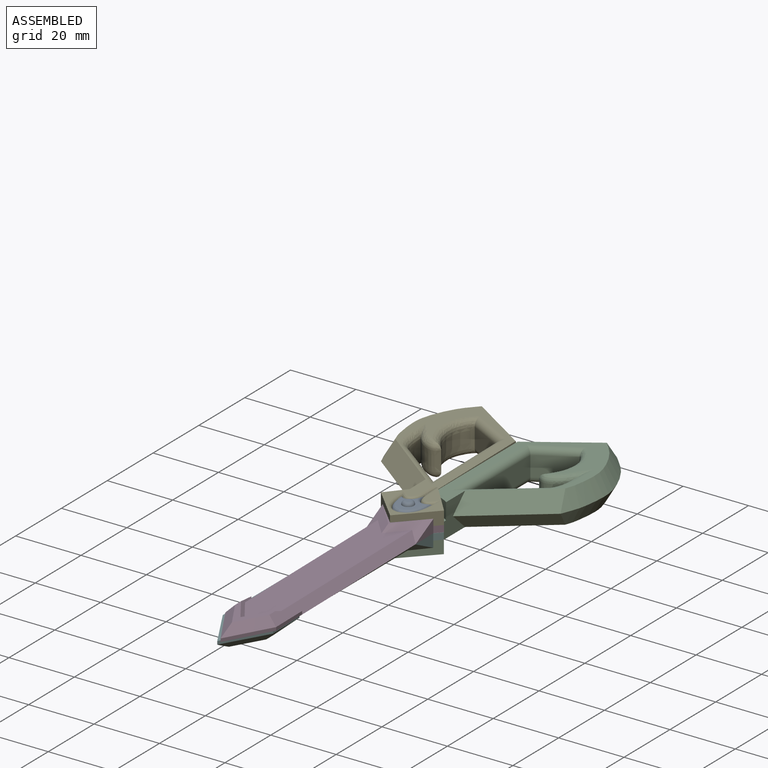
[diagram: assembled view]
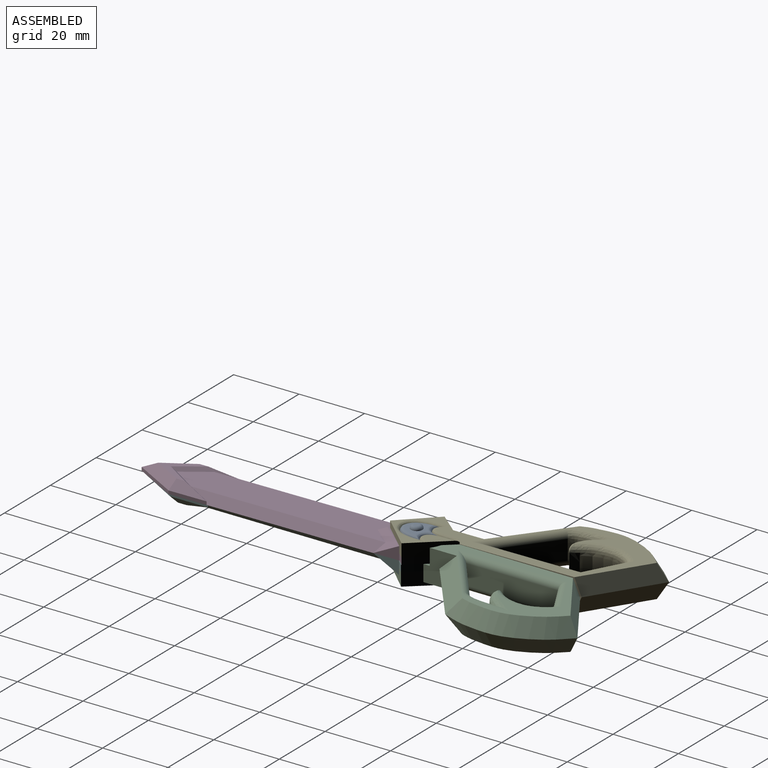
[diagram: assembled view, second angle]
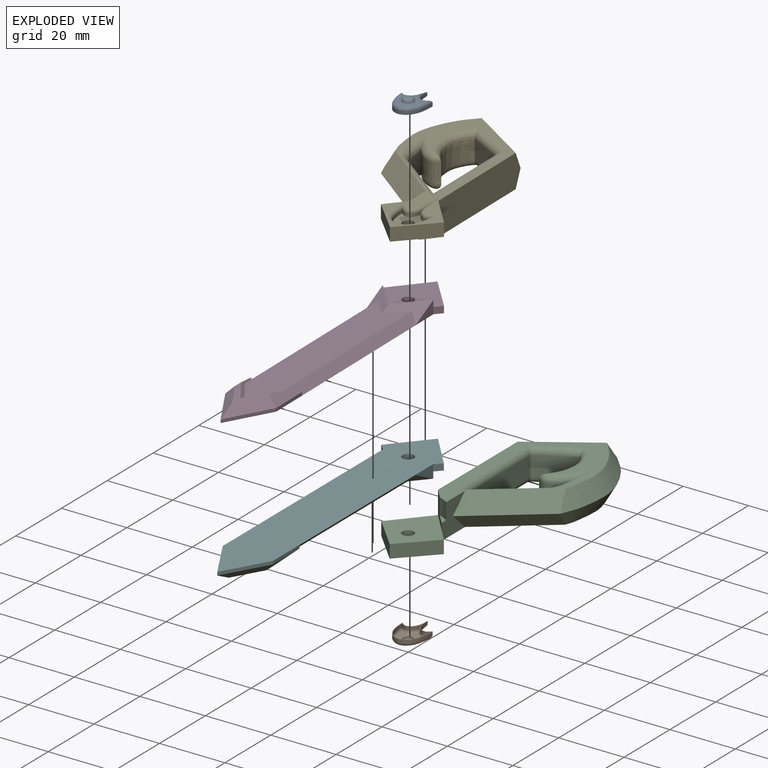
[diagram: exploded view]
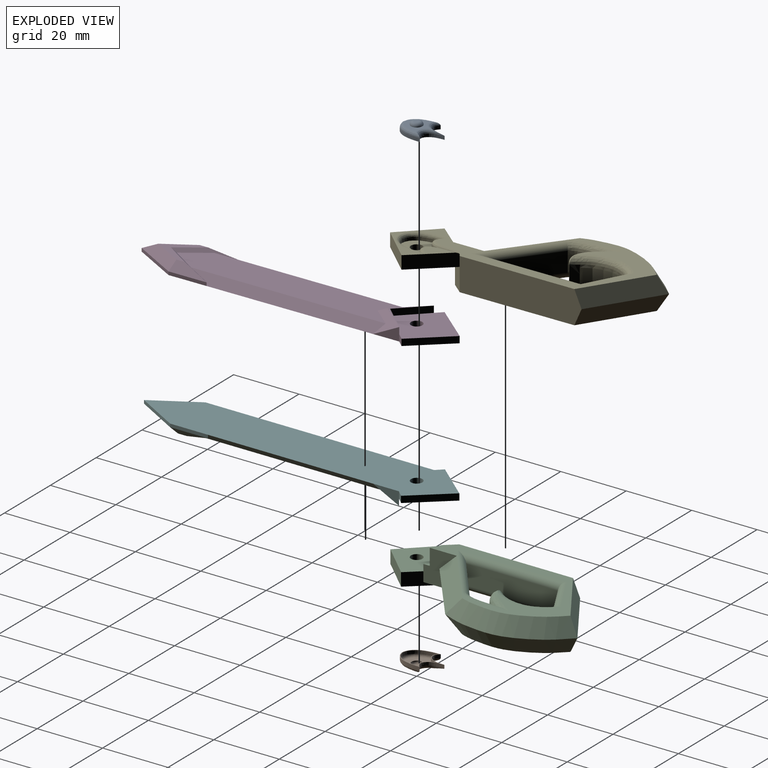
[diagram: exploded view, second angle]
ASSEMBLY  parts=6 mates=5
PART A: 47 faces, bbox 11.3x13.9x3.5 mm
  f0: plane 13.45x9.69mm, normal (0,0,-1), area 7.1mm2, adj f1,f2,f3,f4,f5,f6,f7,f8
  f1: extruded ~2.2x1mm, area 2.2mm2, adj f0,f2,f10,f19
  f2: extruded ~5.41x4.61mm, area 8.9mm2, adj f0,f1,f3,f17
  f3: extruded ~5.41x4.61mm, area 8.9mm2, adj f0,f2,f4,f15
  f4: extruded ~2.2x1mm, area 2.2mm2, adj f0,f3,f5,f14
  f5: extruded ~1.92x1mm, area 1.9mm2, adj f0,f4,f6,f16
  f6: extruded ~3x1.41mm, area 3.4mm2, adj f0,f5,f7,f18
  f7: extruded ~2.78x1.49mm, area 3.2mm2, adj f0,f6,f8,f20
  f8: extruded ~2.78x1.49mm, area 3.2mm2, adj f0,f7,f9,f22
  f9: extruded ~3x1.41mm, area 3.4mm2, adj f0,f8,f10,f23
  f10: extruded ~1.92x1mm, area 1.9mm2, adj f0,f1,f9,f21
  f11: plane 7.28x7.03mm, normal (0,0,1), area 23mm2, adj f13,f14,f15,f16,f17,f18,f19,f20
  f12: plane 1.5x1.5mm, normal (0,0,1), area 1.8mm2, adj f13
  f13: torus R=0.75mm, axis (0,0,1), area 13.7mm2, adj f11,f12
  f14: bspline ~5.75x1.41mm, area 2.2mm2, adj f4,f11,f15,f16
  f15: bspline ~6.79x6.43mm, area 9.9mm2, adj f3,f11,f14,f17
  f16: bspline ~2.76x1.4mm, area 3mm2, adj f5,f11,f14,f18
  f17: bspline ~6.79x6.43mm, area 9.9mm2, adj f2,f11,f15,f19
  f18: bspline ~4.54x2.82mm, area 5mm2, adj f6,f11,f16,f20
  f19: bspline ~3.02x1.16mm, area 2.2mm2, adj f1,f11,f17,f21
  f20: bspline ~4.13x3.08mm, area 4.5mm2, adj f7,f11,f18,f22
  f21: bspline ~5.05x1.95mm, area 3mm2, adj f10,f11,f19,f23
  f22: bspline ~4.13x3.08mm, area 4.5mm2, adj f8,f11,f20,f23
  f23: bspline ~4.54x2.82mm, area 5mm2, adj f9,f11,f21,f22
  f24: extruded ~1.71x1mm, area 1.7mm2, adj f0,f25,f33,f42
  f25: extruded ~4.39x3.2mm, area 6.4mm2, adj f0,f24,f26,f40
  f26: extruded ~4.39x3.2mm, area 6.4mm2, adj f0,f25,f27,f38
  f27: extruded ~1.71x1mm, area 1.7mm2, adj f0,f26,f28,f37
  f28: extruded ~1.9x1mm, area 1.9mm2, adj f0,f27,f29,f39
  f29: extruded ~2.92x1.37mm, area 3.3mm2, adj f0,f28,f30,f41
  f30: extruded ~2.63x1.41mm, area 3.1mm2, adj f0,f29,f31,f43
  f31: extruded ~2.63x1.41mm, area 3.1mm2, adj f0,f30,f32,f45
  f32: extruded ~2.92x1.37mm, area 3.3mm2, adj f0,f31,f33,f46
  f33: extruded ~1.9x1mm, area 1.9mm2, adj f0,f24,f32,f44
  f34: plane 7.28x7.03mm, normal (0,0,-1), area 25.4mm2, adj f36,f37,f38,f39,f40,f41,f42,f43
  f35: plane 1.5x1.5mm, normal (0,0,-1), area 1.8mm2, adj f36
  f36: torus R=0.75mm, axis (0,0,1), area 11.9mm2, adj f34,f35
  f37: bspline ~5.22x1.2mm, area 1.4mm2, adj f27,f34,f38,f39
  f38: bspline ~6.08x4.78mm, area 6.5mm2, adj f26,f34,f37,f40
  f39: bspline ~2.71x1.2mm, area 2.4mm2, adj f28,f34,f37,f41
  f40: bspline ~6.08x4.78mm, area 6.5mm2, adj f25,f34,f38,f42
  f41: bspline ~4.41x2.63mm, area 3.9mm2, adj f29,f34,f39,f43
  f42: bspline ~2.5x0.95mm, area 1.4mm2, adj f24,f34,f40,f44
  f43: bspline ~3.97x2.88mm, area 3.5mm2, adj f30,f34,f41,f45
  f44: bspline ~5.29x1.77mm, area 2.4mm2, adj f33,f34,f42,f46
  f45: bspline ~3.97x2.88mm, area 3.5mm2, adj f31,f34,f43,f46
  f46: bspline ~4.41x2.63mm, area 3.9mm2, adj f32,f34,f44,f45
PART B: same geometry as A
PART C: 61 faces, bbox 40.4x71.6x11.5 mm
  f0: plane 7.96x4.77mm, normal (0,0,1), area 19.3mm2, adj f15,f58
  f1: plane 7.96x4.77mm, normal (0,0,1), area 19.3mm2, adj f16,f56
  f2: plane 7x6.85mm, normal (0.76,-0.65,0), area 40.6mm2, adj f8,f9,f12,f13,f14,f50
  f3: extruded ~16.32x6mm, area 109mm2, adj f4,f10,f42,f48
  f4: plane 10.87x6.01mm, normal (-0.48,-0.88,0), area 74.5mm2, adj f3,f5,f40,f46
  f5: plane 28.11x6mm, normal (-1,0,0), area 168.6mm2, adj f4,f6,f38,f44
  f6: plane 16.58x12.8mm, normal (0.61,0.79,0), area 125.7mm2, adj f5,f7,f39,f45
  f7: extruded ~8.11x6mm, area 50.5mm2, adj f6,f10,f41,f47
  f8: plane 36.93x10mm, normal (1,0,0), area 358.4mm2, adj f2,f11,f12,f16,f34,f35
  f9: plane 10.23x10mm, normal (-1,0,0), area 65.9mm2, adj f2,f11,f12,f13,f14,f15,f36,f37
  f10: extruded ~8.37x6mm, area 61.9mm2, adj f3,f7,f43,f49
  f11: plane 54.49x28.01mm, normal (0,0,1), area 295.9mm2, adj f8,f9,f15,f33,f34,f37,f44,f45
  f12: plane 52.52x28mm, normal (0,0,-1), area 292.6mm2, adj f2,f8,f9,f14,f32,f35,f36,f38
  f13: plane 3.44x2.96mm, normal (0,0,-1), area 3.2mm2, adj f2,f9,f14
  f14: cylinder r=10.05mm len=5mm, axis (0,0,1), area 16.6mm2, adj f2,f9,f12,f13
  f15: plane 11.11x9.57mm, normal (-0.76,0.65,0), area 31.3mm2, adj f0,f9,f11,f16,f17,f29,f50,f58
  f16: plane 11.11x9.57mm, normal (0.76,0.65,0), area 58.5mm2, adj f1,f8,f15,f28,f29,f50,f54,f56
  f17: plane 9.97x9.57mm, normal (-0.72,-0.69,0), area 55.3mm2, adj f15,f28,f29,f50
  f18: extruded ~5.41x4.61mm, area 8.9mm2, adj f19,f27,f31,f58
  f19: extruded ~5.41x4.61mm, area 8.9mm2, adj f18,f20,f31,f56
  f20: extruded ~2.2x1mm, area 2.2mm2, adj f19,f21,f31,f54
  f21: extruded ~1.92x1mm, area 1.9mm2, adj f20,f22,f31,f52
  f22: extruded ~3x1.41mm, area 3.4mm2, adj f21,f23,f31,f51
  f23: extruded ~2.78x1.49mm, area 3.2mm2, adj f22,f24,f31,f53
  f24: extruded ~2.78x1.49mm, area 3.2mm2, adj f23,f25,f31,f55
  f25: extruded ~3x1.41mm, area 3.4mm2, adj f24,f26,f31,f57
  f26: extruded ~1.92x1mm, area 1.9mm2, adj f25,f27,f31,f59
  f27: extruded ~2.2x1mm, area 2.2mm2, adj f18,f26,f31,f60
  f28: plane 9.97x9.57mm, normal (0.72,-0.69,0), area 55.3mm2, adj f16,f17,f29,f50
  f29: plane 19.14x14.48mm, normal (0,0,1), area 50.8mm2, adj f15,f16,f17,f28,f51,f52,f53,f54
  f30: cylinder r=1.75mm len=3.5mm, axis (0,0,-1), area 22mm2, adj f31,f50
  f31: plane 12.97x9.22mm, normal (0,0,1), area 51.9mm2, adj f18,f19,f20,f21,f22,f23,f24,f25
  f32: bspline ~35.27x12.54mm, area 201.4mm2, adj f12,f33,f35,f36
  f33: bspline ~35.27x12.54mm, area 201.4mm2, adj f11,f32,f34,f37
  f34: plane 19.81x15.22mm, normal (0.52,0.78,0.34), area 122.5mm2, adj f8,f11,f33,f35
  f35: plane 19.81x15.22mm, normal (0.52,0.78,-0.34), area 122.5mm2, adj f8,f12,f32,f34
  f36: plane 21.27x20.85mm, normal (-0.47,-0.6,-0.64), area 170.3mm2, adj f9,f12,f32,f37
  f37: plane 21.27x20.85mm, normal (-0.47,-0.6,0.64), area 170.2mm2, adj f9,f11,f33,f36
  f38: cylinder r=2mm len=33.36mm, axis (0,-1,0), area 96.6mm2, adj f5,f12,f39,f40
  f39: cylinder r=2mm len=21.29mm, axis (-0.79,0.61,0), area 72.7mm2, adj f6,f12,f38,f41
  f40: cylinder r=2mm len=14.1mm, axis (0.88,-0.48,0), area 43.1mm2, adj f4,f12,f38,f42
  f41: bspline ~18.24x4.41mm, area 38.3mm2, adj f7,f12,f39,f43
  f42: bspline ~21.43x6.75mm, area 57.9mm2, adj f3,f12,f40,f43
  f43: bspline ~14.54x12.82mm, area 33.3mm2, adj f10,f12,f41,f42
  f44: cylinder r=2mm len=33.36mm, axis (0,1,0), area 96.6mm2, adj f5,f11,f45,f46
  f45: cylinder r=2mm len=21.29mm, axis (0.79,-0.61,0), area 72.7mm2, adj f6,f11,f44,f47
  f46: cylinder r=2mm len=14.1mm, axis (-0.88,0.48,0), area 43.1mm2, adj f4,f11,f44,f48
  f47: bspline ~18.24x4.41mm, area 38.3mm2, adj f7,f11,f45,f49
  f48: bspline ~21.43x6.75mm, area 57.9mm2, adj f3,f11,f46,f49
  f49: bspline ~14.54x12.82mm, area 33.3mm2, adj f10,f11,f47,f48
  f50: plane 21.08x19.14mm, normal (0,0,-1), area 192.1mm2, adj f2,f15,f16,f17,f28,f30
  f51: bspline ~4.96x3.03mm, area 5.5mm2, adj f22,f29,f52,f53
  f52: bspline ~5.46x1.99mm, area 3.1mm2, adj f21,f29,f51,f54
  f53: bspline ~5.25x3.52mm, area 5.6mm2, adj f23,f29,f51,f55
  f54: bspline ~6.5x1.28mm, area 4.9mm2, adj f16,f20,f29,f52,f56
  f55: bspline ~5.25x3.52mm, area 5.6mm2, adj f24,f29,f53,f57
  f56: bspline ~13.41x7.92mm, area 18.9mm2, adj f1,f16,f19,f54,f58
  f57: bspline ~4.96x3.03mm, area 5.5mm2, adj f25,f29,f55,f59
  f58: bspline ~13.41x7.92mm, area 18.9mm2, adj f0,f15,f18,f56,f60
  f59: bspline ~2.89x1.42mm, area 3.1mm2, adj f26,f29,f57,f60
  f60: bspline ~9.22x1.53mm, area 4.9mm2, adj f15,f27,f29,f58,f59
PART D: 30 faces, bbox 19.1x96.4x4 mm
  f0: plane 11.56x1mm, normal (1,0,0), area 11.6mm2, adj f8,f16,f18,f27
  f1: plane 11.6x1mm, normal (-1,0,0), area 11.6mm2, adj f8,f15,f17,f26
  f2: plane 2x1.96mm, normal (-0.72,-0.69,0), area 5.4mm2, adj f5,f7,f8,f11
  f3: plane 2x1.96mm, normal (0.72,-0.69,0), area 5.4mm2, adj f4,f7,f8,f12
  f4: plane 11.11x9.57mm, normal (0.76,0.65,0), area 29.3mm2, adj f3,f5,f7,f8
  f5: plane 11.11x9.57mm, normal (-0.76,0.65,0), area 29.3mm2, adj f2,f4,f7,f8
  f6: cylinder r=1.73mm len=3.46mm, axis (0,0,-1), area 21.8mm2, adj f7,f8
  f7: plane 21.08x19.14mm, normal (0,0,1), area 192.3mm2, adj f2,f3,f4,f5,f6,f9,f10
  f8: plane 96.38x19.14mm, normal (0,0,-1), area 1309.1mm2, adj f0,f1,f2,f3,f4,f5,f6,f11
  f9: plane 8.01x7.69mm, normal (0.72,0.69,0), area 22.2mm2, adj f7,f10,f11,f13,f21
  f10: plane 8.01x7.69mm, normal (-0.72,0.69,0), area 22.2mm2, adj f7,f9,f12,f13,f20
  f11: plane 7.93x4mm, normal (-1,0,0), area 15.8mm2, adj f2,f8,f9,f21
  f12: plane 7.93x4mm, normal (1,0,0), area 15.8mm2, adj f3,f8,f10,f20
  f13: plane 15.2x8.73mm, normal (0,0,1), area 6.2mm2, adj f9,f10,f20,f21
  f14: plane 66.84x10.38mm, normal (0,0,1), area 622.1mm2, adj f20,f21,f22,f23,f28,f29
  f15: plane 1.51x1mm, normal (0.83,0.55,0), area 0.9mm2, adj f1,f22,f28
  f16: plane 1.51x1mm, normal (-0.83,0.55,0), area 0.9mm2, adj f0,f23,f29
  f17: plane 13.34x7.69mm, normal (-0.87,-0.5,0), area 15.4mm2, adj f1,f8,f18,f24
  f18: plane 13.38x7.69mm, normal (0.87,-0.5,0), area 15.4mm2, adj f0,f8,f17,f25
  f19: plane 11.63x10.38mm, normal (0,0,1), area 33.3mm2, adj f24,f25,f26,f27,f28,f29
  f20: plane 11.8x7.69mm, normal (0.46,-0.4,0.79), area 36.7mm2, adj f10,f12,f13,f14,f21,f23
  f21: plane 11.8x7.69mm, normal (-0.46,-0.4,0.79), area 36.7mm2, adj f9,f11,f13,f14,f20,f22
  f22: plane 59.01x2.5mm, normal (-0.71,0,0.71), area 191.6mm2, adj f8,f14,f15,f21,f28
  f23: plane 59.01x2.5mm, normal (0.71,0,0.71), area 191.6mm2, adj f8,f14,f16,f20,f29
  f24: plane 14.01x7.69mm, normal (-0.61,-0.35,0.71), area 45.6mm2, adj f17,f19,f25,f26
  f25: plane 14.05x7.69mm, normal (0.61,-0.35,0.71), area 45.7mm2, adj f18,f19,f24,f27
  f26: plane 11.6x2.5mm, normal (-0.71,0,0.71), area 25.2mm2, adj f1,f19,f24,f28
  f27: plane 11.56x2.5mm, normal (0.71,0,0.71), area 25mm2, adj f0,f19,f25,f29
  f28: plane 16.12x7.69mm, normal (0.59,0.39,0.71), area 18.4mm2, adj f14,f15,f19,f22,f26,f29
  f29: plane 16.12x7.69mm, normal (-0.59,0.39,0.71), area 18.4mm2, adj f14,f16,f19,f23,f27,f28
PART E: same geometry as C
PART F: same geometry as D
PLACE A rot(axis=(0,0,1),0.7deg) t=(-3.82,-5.57,1)mm
PLACE B rot(axis=(0,1,0),180deg) t=(3.89,-5.53,13)mm
PLACE C rot(axis=(0,1,0),180deg) t=(-44.34,-11.84,7)mm
PLACE D rot(axis=(0,0,1),0.7deg) t=(-3.82,-5.57,7)mm
PLACE E rot(axis=(0,0,1),0.7deg) t=(44.48,-11.29,7)mm
PLACE F rot(axis=(0,1,0),180deg) t=(3.89,-5.53,7)mm
MATE revolute F.f6 <-> D.f6  axis (0,0,1) through (0,0,7)mm
MATE fastened B.f0 <-> C.f31  axis (0,0,-1) through (1.25,3.81,3)mm
MATE fastened A.f0 <-> E.f31  axis (0,0,1) through (-1.29,3.79,11)mm
MATE fastened D.f6 <-> E.f30  axis (0,0,1) through (0,0,9)mm
MATE fastened F.f6 <-> C.f30  axis (0,0,-1) through (0,0,5)mm
